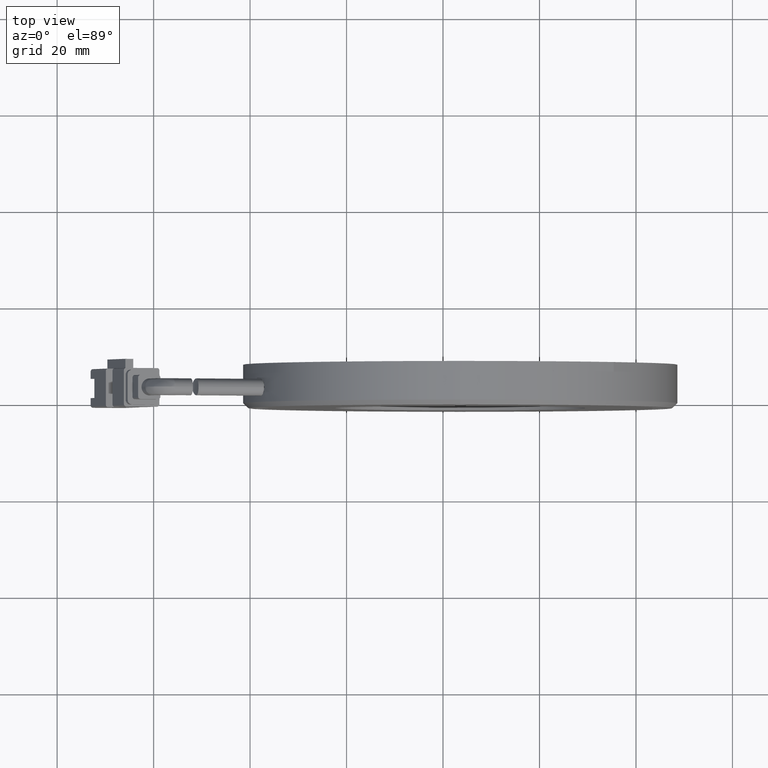
[diagram: clean part render]
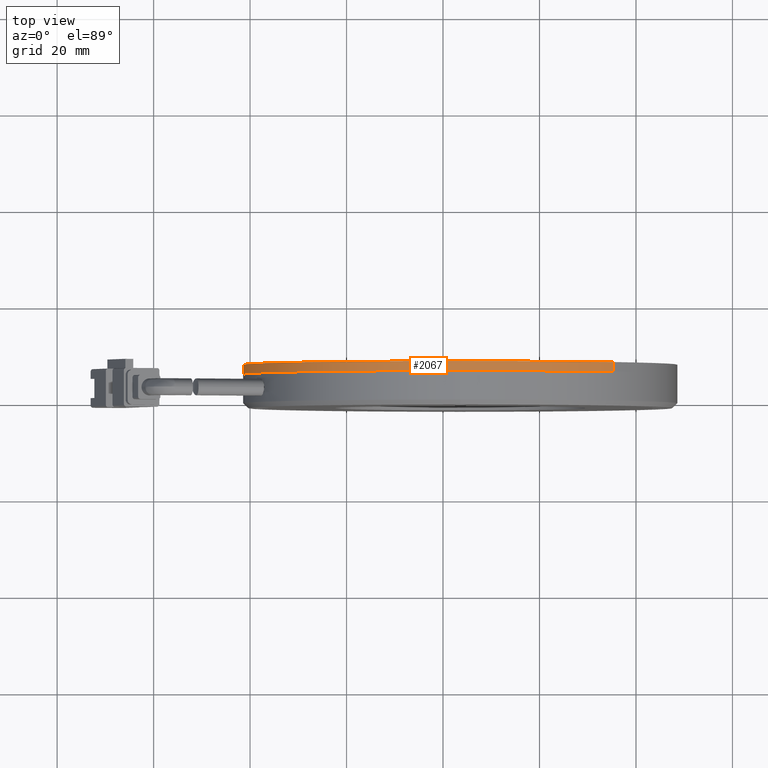
[diagram: same view with one face highlighted and labeled with its STEP entity id]
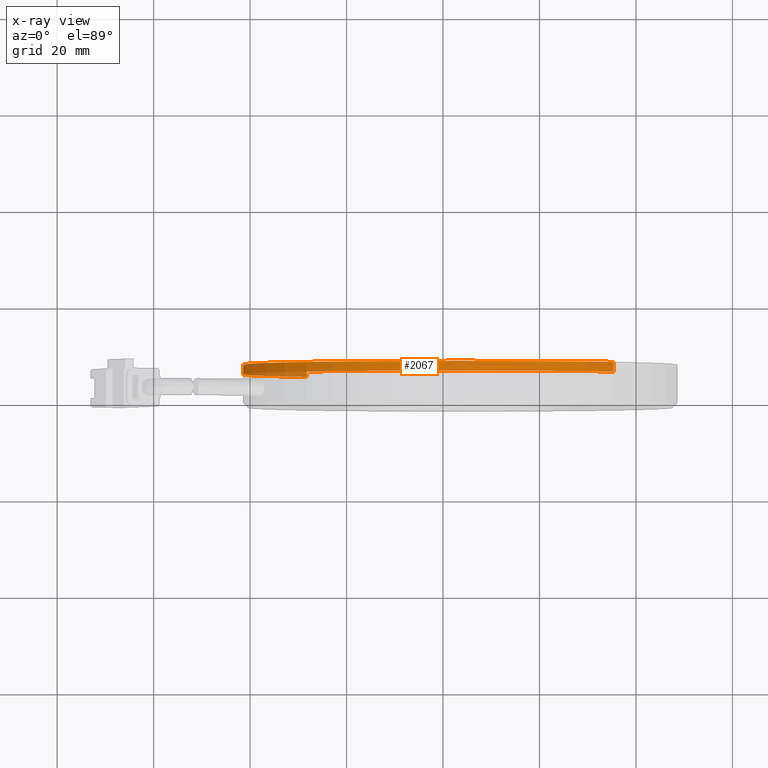
[diagram: x-ray of the same camera — body ghosted, the highlighted face saturated]
A machine part, top view. The second image highlights one B-rep face of the part: STEP entity #2067.
The next image is the same camera in x-ray: the body ghosted, the highlighted face saturated — about 6% of this face is hidden behind the body in this view.
In plain terms, the highlighted cylindrical surface (partial cylindrical patch) has radius 45 mm, axis along (-0, 1, -0).
Its self-contained STEP definition (entity closure, byte-faithful):
#453 = CYLINDRICAL_SURFACE ( 'NONE', #19178, 45.00000000000000000 ) ;
#1440 = VECTOR ( 'NONE', #4105, 1000.000000000000000 ) ;
#1598 = DIRECTION ( 'NONE',  ( -1.163897087407499700E-016, 1.000000000000000000, -2.939373556709199600E-017 ) ) ;
#2067 = ADVANCED_FACE ( 'NONE', ( #12713 ), #453, .T. ) ;
#2425 = CARTESIAN_POINT ( 'NONE',  ( -28.22213318682790400, 7.623552123552117100, -31.84602692211277400 ) ) ;
#2437 = AXIS2_PLACEMENT_3D ( 'NONE', #24436, #5561, #27641 ) ;
#3876 = EDGE_CURVE ( 'NONE', #17967, #37647, #36178, .T. ) ;
#4105 = DIRECTION ( 'NONE',  ( -1.163897087407499700E-016, 1.000000000000000000, -2.939373556709199600E-017 ) ) ;
#5189 = CIRCLE ( 'NONE', #2437, 45.00000000000000000 ) ;
#5561 = DIRECTION ( 'NONE',  ( 1.163897087407499700E-016, -1.000000000000000000, 2.939373556709199600E-017 ) ) ;
#9772 = LINE ( 'NONE', #35536, #1440 ) ;
#10277 = DIRECTION ( 'NONE',  ( -1.163897087407499700E-016, 1.000000000000000000, -2.939373556709199600E-017 ) ) ;
#10512 = CARTESIAN_POINT ( 'NONE',  ( -28.22213318682790400, 5.623552123552117100, -31.84602692211277400 ) ) ;
#10973 = VECTOR ( 'NONE', #1598, 1000.000000000000000 ) ;
#11567 = CARTESIAN_POINT ( 'NONE',  ( -28.22213318682790400, 7.623552123552117100, -31.84602692211277400 ) ) ;
#12713 = FACE_OUTER_BOUND ( 'NONE', #15617, .T. ) ;
#15617 = EDGE_LOOP ( 'NONE', ( #35213, #33521, #40840, #25750 ) ) ;
#17967 = VERTEX_POINT ( 'NONE', #10512 ) ;
#18993 = EDGE_CURVE ( 'NONE', #17967, #29536, #39977, .T. ) ;
#19178 = AXIS2_PLACEMENT_3D ( 'NONE', #38316, #21736, #23241 ) ;
#21736 = DIRECTION ( 'NONE',  ( -1.163897087407499700E-016, 1.000000000000000000, -2.939373556709199600E-017 ) ) ;
#23097 = EDGE_CURVE ( 'NONE', #29536, #37356, #9772, .T. ) ;
#23241 = DIRECTION ( 'NONE',  ( 0.7065235946279216900, 9.637352644315595200E-017, 0.7076894871580614600 ) ) ;
#23796 = EDGE_CURVE ( 'NONE', #37356, #37647, #5189, .T. ) ;
#24436 = CARTESIAN_POINT ( 'NONE',  ( 3.571428571428565800, 7.623552123552121500, 0.0000000000000000000 ) ) ;
#25750 = ORIENTED_EDGE ( 'NONE', *, *, #23796, .T. ) ;
#27641 = DIRECTION ( 'NONE',  ( 0.7065235946279216900, 9.637352644315595200E-017, 0.7076894871580614600 ) ) ;
#29239 = CARTESIAN_POINT ( 'NONE',  ( 3.571428571428565800, 5.623552123552121500, 0.0000000000000000000 ) ) ;
#29420 = CARTESIAN_POINT ( 'NONE',  ( 35.36499032968504300, 7.623552123552126000, 31.84602692211276700 ) ) ;
#29536 = VERTEX_POINT ( 'NONE', #35912 ) ;
#32392 = DIRECTION ( 'NONE',  ( 0.7065235946279216900, 9.637352644315595200E-017, 0.7076894871580614600 ) ) ;
#33521 = ORIENTED_EDGE ( 'NONE', *, *, #18993, .T. ) ;
#35213 = ORIENTED_EDGE ( 'NONE', *, *, #3876, .F. ) ;
#35536 = CARTESIAN_POINT ( 'NONE',  ( 35.36499032968504300, 7.623552123552126000, 31.84602692211276700 ) ) ;
#35912 = CARTESIAN_POINT ( 'NONE',  ( 35.36499032968504300, 5.623552123552126000, 31.84602692211276700 ) ) ;
#36178 = LINE ( 'NONE', #2425, #10973 ) ;
#37356 = VERTEX_POINT ( 'NONE', #29420 ) ;
#37647 = VERTEX_POINT ( 'NONE', #11567 ) ;
#38316 = CARTESIAN_POINT ( 'NONE',  ( 3.571428571428565800, 7.623552123552121500, 0.0000000000000000000 ) ) ;
#38776 = AXIS2_PLACEMENT_3D ( 'NONE', #29239, #10277, #32392 ) ;
#39977 = CIRCLE ( 'NONE', #38776, 45.00000000000000000 ) ;
#40840 = ORIENTED_EDGE ( 'NONE', *, *, #23097, .T. ) ;